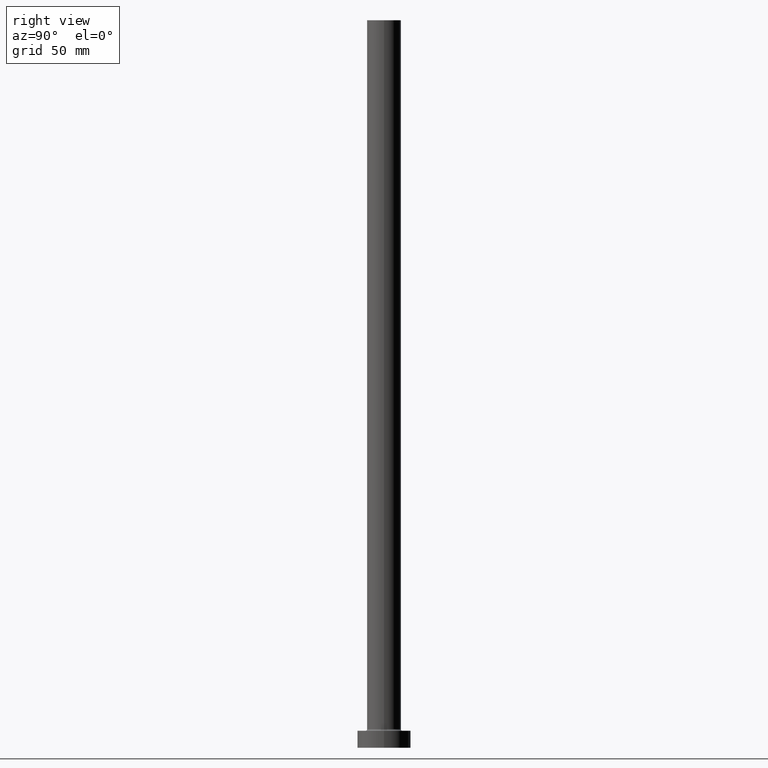
[diagram: clean part render]
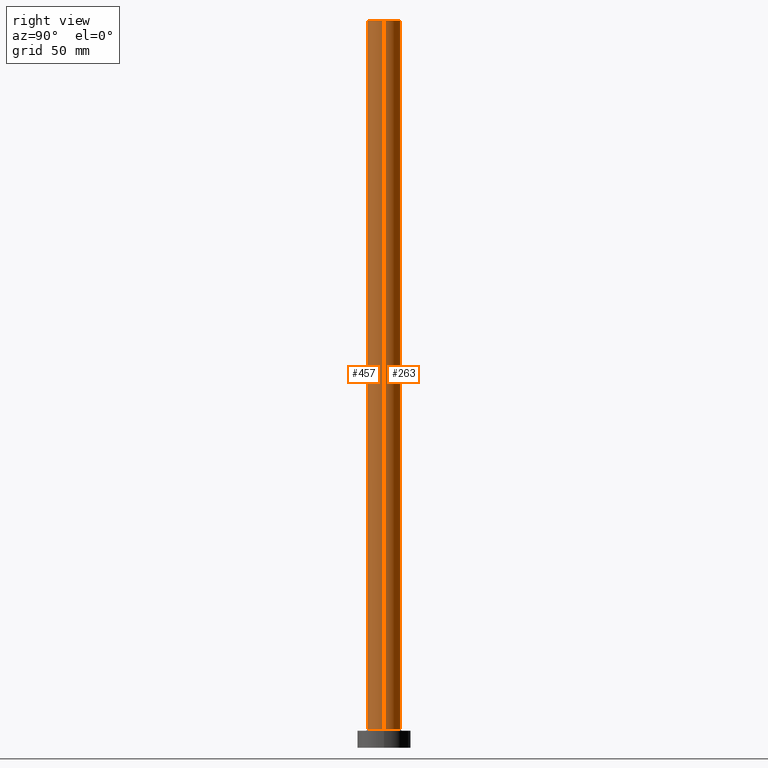
[diagram: same view with one multi-face feature highlighted, each face labeled with its STEP entity id]
A machine part, right view. The highlighted faces form ONE feature: a constant-radius fillet chain: 2 tangent blend faces with common blend radius 7 mm. The faces share edges in the B-rep.
Their STEP definitions:
[1] entity #457 (Cylinder):
#6 = FACE_OUTER_BOUND ( 'NONE', #73, .T. ) ;
#15 = ORIENTED_EDGE ( 'NONE', *, *, #239, .T. ) ;
#42 = CIRCLE ( 'NONE', #166, 7.000000000000000888 ) ;
#43 = VERTEX_POINT ( 'NONE', #448 ) ;
#49 = CARTESIAN_POINT ( 'NONE',  ( 0.000000000000000000, 0.000000000000000000, 7.699999999999985079 ) ) ;
#73 = EDGE_LOOP ( 'NONE', ( #319, #355, #15, #105 ) ) ;
#83 = DIRECTION ( 'NONE',  ( 0.000000000000000000, 0.000000000000000000, 1.000000000000000000 ) ) ;
#100 = DIRECTION ( 'NONE',  ( 1.000000000000000000, 0.000000000000000000, 0.000000000000000000 ) ) ;
#105 = ORIENTED_EDGE ( 'NONE', *, *, #118, .T. ) ;
#118 = EDGE_CURVE ( 'NONE', #399, #220, #422, .T. ) ;
#123 = CARTESIAN_POINT ( 'NONE',  ( 7.000000000000000888, 8.572527594031474176E-16, 300.0000000000000000 ) ) ;
#130 = VECTOR ( 'NONE', #428, 1000.000000000000000 ) ;
#138 = CARTESIAN_POINT ( 'NONE',  ( -7.000000000000000888, 0.000000000000000000, 300.0000000000000000 ) ) ;
#145 = CARTESIAN_POINT ( 'NONE',  ( 0.000000000000000000, 0.000000000000000000, 300.0000000000000000 ) ) ;
#154 = AXIS2_PLACEMENT_3D ( 'NONE', #145, #183, #178 ) ;
#161 = VERTEX_POINT ( 'NONE', #340 ) ;
#166 = AXIS2_PLACEMENT_3D ( 'NONE', #279, #246, #100 ) ;
#174 = EDGE_CURVE ( 'NONE', #43, #220, #376, .T. ) ;
#178 = DIRECTION ( 'NONE',  ( -1.000000000000000000, 0.000000000000000000, 0.000000000000000000 ) ) ;
#183 = DIRECTION ( 'NONE',  ( -0.000000000000000000, -0.000000000000000000, -1.000000000000000000 ) ) ;
#202 = AXIS2_PLACEMENT_3D ( 'NONE', #49, #83, #375 ) ;
#220 = VERTEX_POINT ( 'NONE', #406 ) ;
#239 = EDGE_CURVE ( 'NONE', #161, #399, #286, .T. ) ;
#246 = DIRECTION ( 'NONE',  ( 0.000000000000000000, 0.000000000000000000, 1.000000000000000000 ) ) ;
#279 = CARTESIAN_POINT ( 'NONE',  ( 0.000000000000000000, 0.000000000000000000, 300.0000000000000000 ) ) ;
#286 = LINE ( 'NONE', #138, #130 ) ;
#287 = EDGE_CURVE ( 'NONE', #161, #43, #42, .T. ) ;
#307 = DIRECTION ( 'NONE',  ( -0.000000000000000000, -0.000000000000000000, -1.000000000000000000 ) ) ;
#319 = ORIENTED_EDGE ( 'NONE', *, *, #174, .F. ) ;
#340 = CARTESIAN_POINT ( 'NONE',  ( -7.000000000000000888, 0.000000000000000000, 300.0000000000000000 ) ) ;
#355 = ORIENTED_EDGE ( 'NONE', *, *, #287, .F. ) ;
#363 = CYLINDRICAL_SURFACE ( 'NONE', #154, 7.000000000000000888 ) ;
#375 = DIRECTION ( 'NONE',  ( 1.000000000000000000, 0.000000000000000000, 0.000000000000000000 ) ) ;
#376 = LINE ( 'NONE', #123, #434 ) ;
#399 = VERTEX_POINT ( 'NONE', #450 ) ;
#406 = CARTESIAN_POINT ( 'NONE',  ( 7.000000000000000888, 8.572527594031474176E-16, 7.699999999999985079 ) ) ;
#422 = CIRCLE ( 'NONE', #202, 7.000000000000000888 ) ;
#428 = DIRECTION ( 'NONE',  ( -0.000000000000000000, -0.000000000000000000, -1.000000000000000000 ) ) ;
#434 = VECTOR ( 'NONE', #307, 1000.000000000000000 ) ;
#448 = CARTESIAN_POINT ( 'NONE',  ( 7.000000000000000888, 8.572527594031474176E-16, 300.0000000000000000 ) ) ;
#450 = CARTESIAN_POINT ( 'NONE',  ( -7.000000000000000888, 0.000000000000000000, 7.699999999999985079 ) ) ;
#457 = ADVANCED_FACE ( 'NONE', ( #6 ), #363, .T. ) ;
[2] entity #263 (Cylinder):
#11 = ORIENTED_EDGE ( 'NONE', *, *, #217, .F. ) ;
#18 = DIRECTION ( 'NONE',  ( 0.000000000000000000, 0.000000000000000000, 1.000000000000000000 ) ) ;
#29 = CARTESIAN_POINT ( 'NONE',  ( 0.000000000000000000, 0.000000000000000000, 300.0000000000000000 ) ) ;
#34 = FACE_OUTER_BOUND ( 'NONE', #159, .T. ) ;
#43 = VERTEX_POINT ( 'NONE', #448 ) ;
#77 = ORIENTED_EDGE ( 'NONE', *, *, #174, .T. ) ;
#101 = EDGE_CURVE ( 'NONE', #220, #399, #212, .T. ) ;
#117 = DIRECTION ( 'NONE',  ( 1.000000000000000000, 0.000000000000000000, 0.000000000000000000 ) ) ;
#123 = CARTESIAN_POINT ( 'NONE',  ( 7.000000000000000888, 8.572527594031474176E-16, 300.0000000000000000 ) ) ;
#130 = VECTOR ( 'NONE', #428, 1000.000000000000000 ) ;
#138 = CARTESIAN_POINT ( 'NONE',  ( -7.000000000000000888, 0.000000000000000000, 300.0000000000000000 ) ) ;
#157 = ORIENTED_EDGE ( 'NONE', *, *, #239, .F. ) ;
#159 = EDGE_LOOP ( 'NONE', ( #11, #77, #384, #157 ) ) ;
#161 = VERTEX_POINT ( 'NONE', #340 ) ;
#172 = DIRECTION ( 'NONE',  ( 1.000000000000000000, 0.000000000000000000, 0.000000000000000000 ) ) ;
#174 = EDGE_CURVE ( 'NONE', #43, #220, #376, .T. ) ;
#180 = CYLINDRICAL_SURFACE ( 'NONE', #338, 7.000000000000000888 ) ;
#192 = DIRECTION ( 'NONE',  ( 0.000000000000000000, 0.000000000000000000, 1.000000000000000000 ) ) ;
#212 = CIRCLE ( 'NONE', #321, 7.000000000000000888 ) ;
#217 = EDGE_CURVE ( 'NONE', #43, #161, #305, .T. ) ;
#220 = VERTEX_POINT ( 'NONE', #406 ) ;
#232 = AXIS2_PLACEMENT_3D ( 'NONE', #29, #192, #172 ) ;
#239 = EDGE_CURVE ( 'NONE', #161, #399, #286, .T. ) ;
#263 = ADVANCED_FACE ( 'NONE', ( #34 ), #180, .T. ) ;
#286 = LINE ( 'NONE', #138, #130 ) ;
#305 = CIRCLE ( 'NONE', #232, 7.000000000000000888 ) ;
#307 = DIRECTION ( 'NONE',  ( -0.000000000000000000, -0.000000000000000000, -1.000000000000000000 ) ) ;
#316 = CARTESIAN_POINT ( 'NONE',  ( 0.000000000000000000, 0.000000000000000000, 7.699999999999985079 ) ) ;
#321 = AXIS2_PLACEMENT_3D ( 'NONE', #316, #18, #117 ) ;
#326 = DIRECTION ( 'NONE',  ( -0.000000000000000000, -0.000000000000000000, -1.000000000000000000 ) ) ;
#338 = AXIS2_PLACEMENT_3D ( 'NONE', #461, #326, #425 ) ;
#340 = CARTESIAN_POINT ( 'NONE',  ( -7.000000000000000888, 0.000000000000000000, 300.0000000000000000 ) ) ;
#376 = LINE ( 'NONE', #123, #434 ) ;
#384 = ORIENTED_EDGE ( 'NONE', *, *, #101, .T. ) ;
#399 = VERTEX_POINT ( 'NONE', #450 ) ;
#406 = CARTESIAN_POINT ( 'NONE',  ( 7.000000000000000888, 8.572527594031474176E-16, 7.699999999999985079 ) ) ;
#425 = DIRECTION ( 'NONE',  ( -1.000000000000000000, 0.000000000000000000, 0.000000000000000000 ) ) ;
#428 = DIRECTION ( 'NONE',  ( -0.000000000000000000, -0.000000000000000000, -1.000000000000000000 ) ) ;
#434 = VECTOR ( 'NONE', #307, 1000.000000000000000 ) ;
#448 = CARTESIAN_POINT ( 'NONE',  ( 7.000000000000000888, 8.572527594031474176E-16, 300.0000000000000000 ) ) ;
#450 = CARTESIAN_POINT ( 'NONE',  ( -7.000000000000000888, 0.000000000000000000, 7.699999999999985079 ) ) ;
#461 = CARTESIAN_POINT ( 'NONE',  ( 0.000000000000000000, 0.000000000000000000, 300.0000000000000000 ) ) ;